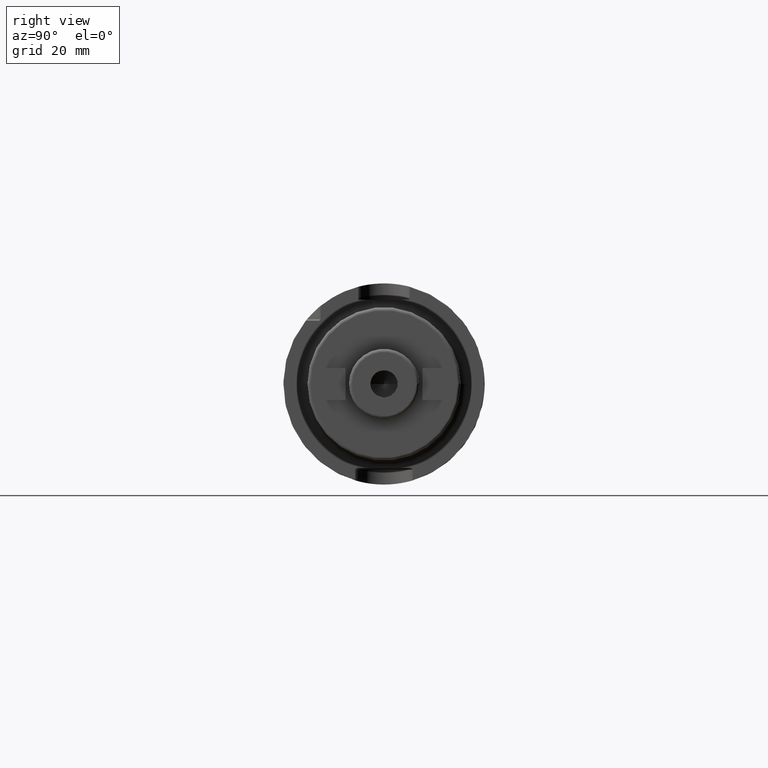
[diagram: clean part render]
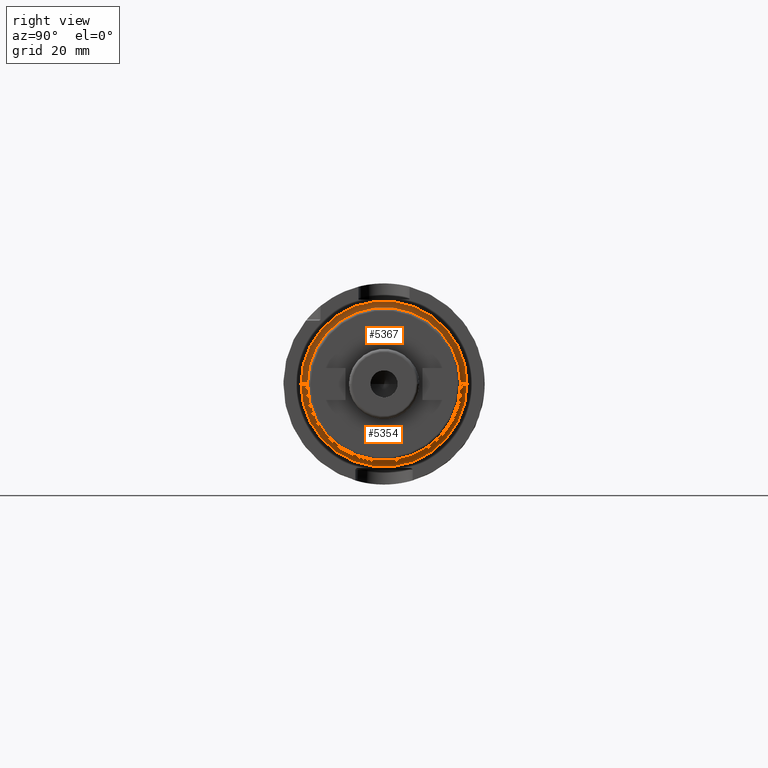
[diagram: same view with one multi-face feature highlighted, each face labeled with its STEP entity id]
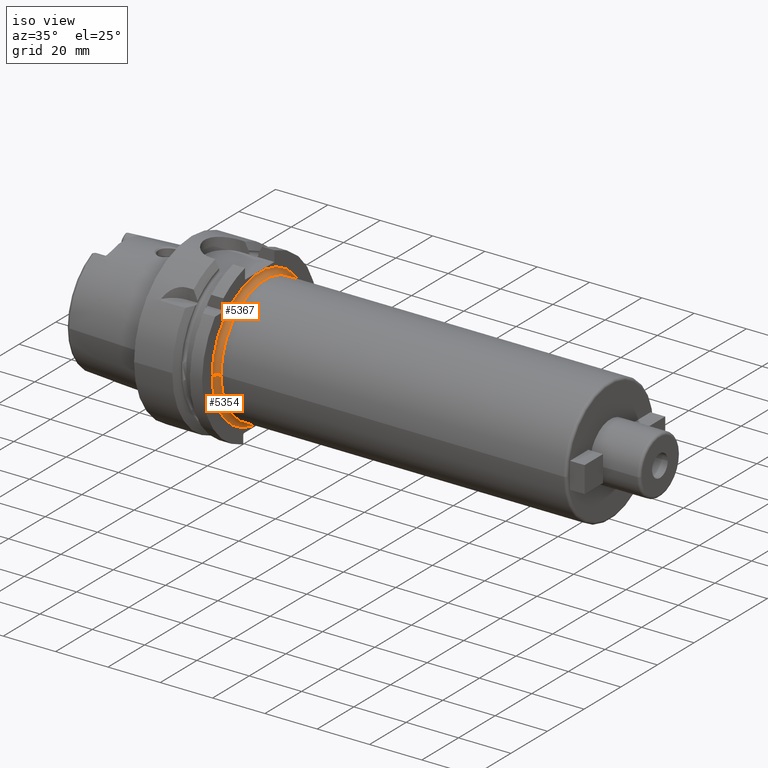
[diagram: same view with one multi-face feature highlighted, each face labeled with its STEP entity id]
A machine part, right view. The highlighted faces form ONE feature: a constant-radius fillet chain: 2 tangent blend faces with common blend radius 2 mm. The faces share edges in the B-rep.
A second angle (iso view) of the same feature is appended — it is thin or edge-on in the first view.
Their STEP definitions:
[1] entity #5354 (Torus):
#1708=CARTESIAN_POINT('',(2.6E1,0.E0,0.E0));
#1709=DIRECTION('',(1.E0,0.E0,0.E0));
#1710=DIRECTION('',(0.E0,-1.E0,0.E0));
#1711=AXIS2_PLACEMENT_3D('',#1708,#1709,#1710);
#1956=CARTESIAN_POINT('',(2.8E1,-2.6E1,1.471045507628E-14));
#1957=DIRECTION('',(0.E0,0.E0,-1.E0));
#1958=DIRECTION('',(-1.E0,0.E0,0.E0));
#1959=AXIS2_PLACEMENT_3D('',#1956,#1957,#1958);
#1961=CARTESIAN_POINT('',(2.8E1,2.6E1,-1.817990202824E-14));
#1962=DIRECTION('',(0.E0,0.E0,1.E0));
#1963=DIRECTION('',(-1.E0,0.E0,0.E0));
#1964=AXIS2_PLACEMENT_3D('',#1961,#1962,#1963);
#1980=CARTESIAN_POINT('',(2.8E1,0.E0,0.E0));
#1981=DIRECTION('',(1.E0,0.E0,0.E0));
#1982=DIRECTION('',(0.E0,-1.E0,0.E0));
#1983=AXIS2_PLACEMENT_3D('',#1980,#1981,#1982);
#3190=CARTESIAN_POINT('',(2.6E1,-2.6E1,0.E0));
#3191=CARTESIAN_POINT('',(2.6E1,2.6E1,0.E0));
#3192=VERTEX_POINT('',#3190);
#3193=VERTEX_POINT('',#3191);
#3194=CARTESIAN_POINT('',(2.8E1,-2.4E1,0.E0));
#3195=CARTESIAN_POINT('',(2.8E1,2.4E1,0.E0));
#3196=VERTEX_POINT('',#3194);
#3197=VERTEX_POINT('',#3195);
#5340=CARTESIAN_POINT('',(2.8E1,0.E0,0.E0));
#5341=DIRECTION('',(1.E0,0.E0,0.E0));
#5342=DIRECTION('',(0.E0,-9.999948687983E-1,3.203494520729E-3));
#5343=AXIS2_PLACEMENT_3D('',#5340,#5341,#5342);
#5344=TOROIDAL_SURFACE('',#5343,2.6E1,2.E0);
#5345=ORIENTED_EDGE('',*,*,#5047,.F.);
#5347=ORIENTED_EDGE('',*,*,#5346,.T.);
#5349=ORIENTED_EDGE('',*,*,#5348,.T.);
#5351=ORIENTED_EDGE('',*,*,#5350,.F.);
#5352=EDGE_LOOP('',(#5345,#5347,#5349,#5351));
#5353=FACE_OUTER_BOUND('',#5352,.F.);
#5354=ADVANCED_FACE('',(#5353),#5344,.F.);
#1712=CIRCLE('',#1711,2.6E1);
#1960=CIRCLE('',#1959,2.E0);
#1965=CIRCLE('',#1964,2.E0);
#1984=CIRCLE('',#1983,2.4E1);
#5047=EDGE_CURVE('',#3192,#3193,#1712,.T.);
#5346=EDGE_CURVE('',#3192,#3196,#1960,.T.);
#5348=EDGE_CURVE('',#3196,#3197,#1984,.T.);
#5350=EDGE_CURVE('',#3193,#3197,#1965,.T.);
[2] entity #5367 (Torus):
#1713=CARTESIAN_POINT('',(2.6E1,0.E0,0.E0));
#1714=DIRECTION('',(1.E0,0.E0,0.E0));
#1715=DIRECTION('',(0.E0,1.E0,0.E0));
#1716=AXIS2_PLACEMENT_3D('',#1713,#1714,#1715);
#1956=CARTESIAN_POINT('',(2.8E1,-2.6E1,1.471045507628E-14));
#1957=DIRECTION('',(0.E0,0.E0,-1.E0));
#1958=DIRECTION('',(-1.E0,0.E0,0.E0));
#1959=AXIS2_PLACEMENT_3D('',#1956,#1957,#1958);
#1961=CARTESIAN_POINT('',(2.8E1,2.6E1,-1.817990202824E-14));
#1962=DIRECTION('',(0.E0,0.E0,1.E0));
#1963=DIRECTION('',(-1.E0,0.E0,0.E0));
#1964=AXIS2_PLACEMENT_3D('',#1961,#1962,#1963);
#1971=CARTESIAN_POINT('',(2.8E1,0.E0,0.E0));
#1972=DIRECTION('',(1.E0,0.E0,0.E0));
#1973=DIRECTION('',(0.E0,1.E0,0.E0));
#1974=AXIS2_PLACEMENT_3D('',#1971,#1972,#1973);
#3190=CARTESIAN_POINT('',(2.6E1,-2.6E1,0.E0));
#3191=CARTESIAN_POINT('',(2.6E1,2.6E1,0.E0));
#3192=VERTEX_POINT('',#3190);
#3193=VERTEX_POINT('',#3191);
#3194=CARTESIAN_POINT('',(2.8E1,-2.4E1,0.E0));
#3195=CARTESIAN_POINT('',(2.8E1,2.4E1,0.E0));
#3196=VERTEX_POINT('',#3194);
#3197=VERTEX_POINT('',#3195);
#5355=CARTESIAN_POINT('',(2.8E1,0.E0,0.E0));
#5356=DIRECTION('',(1.E0,0.E0,0.E0));
#5357=DIRECTION('',(0.E0,9.999948687983E-1,-3.203494520730E-3));
#5358=AXIS2_PLACEMENT_3D('',#5355,#5356,#5357);
#5359=TOROIDAL_SURFACE('',#5358,2.6E1,2.E0);
#5360=ORIENTED_EDGE('',*,*,#5049,.F.);
#5361=ORIENTED_EDGE('',*,*,#5350,.T.);
#5363=ORIENTED_EDGE('',*,*,#5362,.T.);
#5364=ORIENTED_EDGE('',*,*,#5346,.F.);
#5365=EDGE_LOOP('',(#5360,#5361,#5363,#5364));
#5366=FACE_OUTER_BOUND('',#5365,.F.);
#5367=ADVANCED_FACE('',(#5366),#5359,.F.);
#1717=CIRCLE('',#1716,2.6E1);
#1960=CIRCLE('',#1959,2.E0);
#1965=CIRCLE('',#1964,2.E0);
#1975=CIRCLE('',#1974,2.4E1);
#5049=EDGE_CURVE('',#3193,#3192,#1717,.T.);
#5346=EDGE_CURVE('',#3192,#3196,#1960,.T.);
#5350=EDGE_CURVE('',#3193,#3197,#1965,.T.);
#5362=EDGE_CURVE('',#3197,#3196,#1975,.T.);